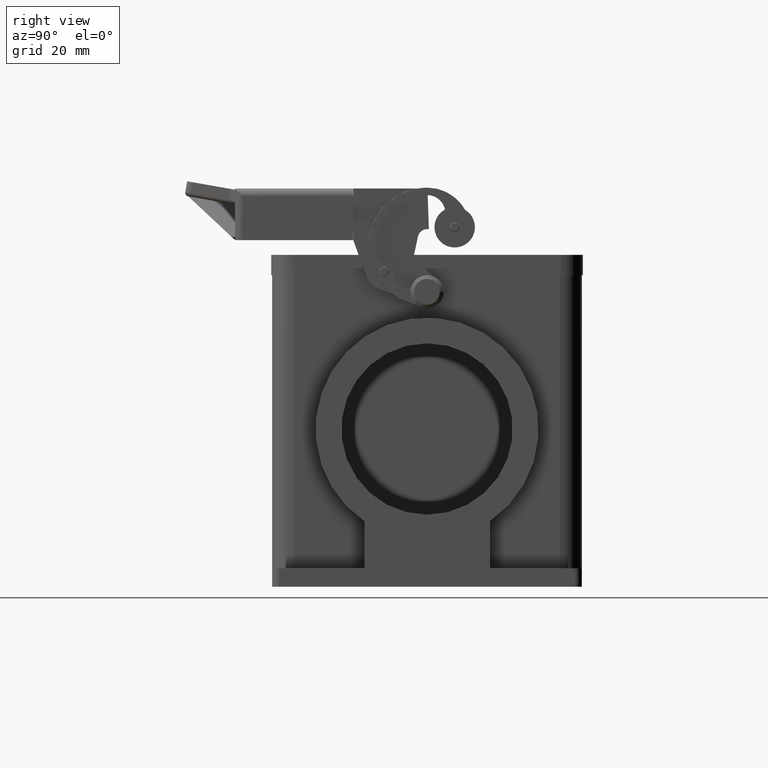
[diagram: clean part render]
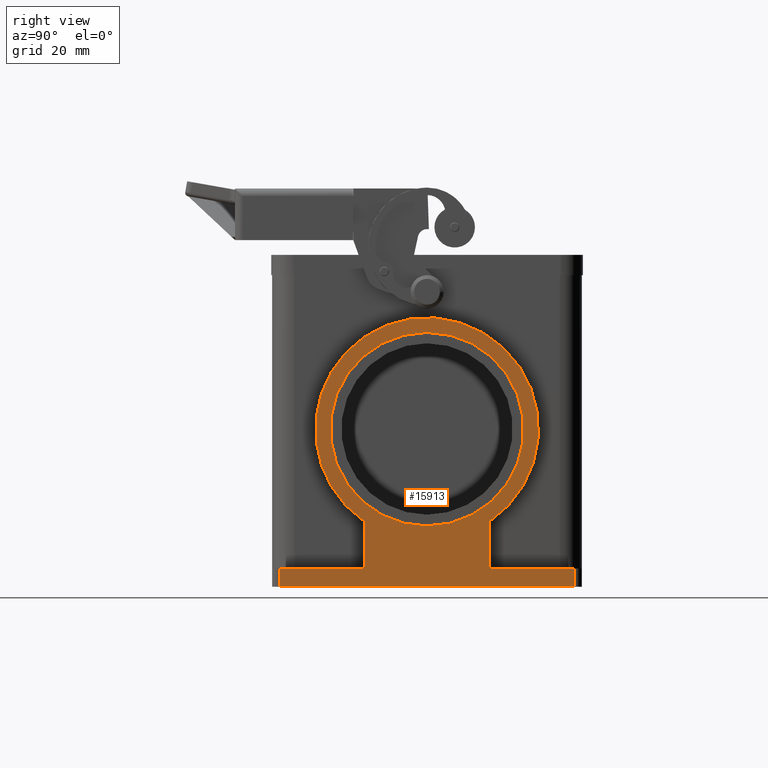
[diagram: same view with one face highlighted and labeled with its STEP entity id]
A machine part, right view. The second image highlights one B-rep face of the part: STEP entity #15913.
In plain terms, the highlighted planar face has unit normal (1, 0, 0).
Its self-contained STEP definition (entity closure, byte-faithful):
#227=CARTESIAN_POINT('',(62.499999999999986,-40.000000000000007,-55.0));
#228=VERTEX_POINT('',#227);
#236=CARTESIAN_POINT('',(62.499999999999986,-40.000000000000007,-50.0));
#237=VERTEX_POINT('',#236);
#238=CARTESIAN_POINT('',(62.499999999999986,-40.000000000000007,-55.0));
#239=DIRECTION('',(0.0,0.0,1.0));
#240=VECTOR('',#239,5.0);
#241=LINE('',#238,#240);
#242=EDGE_CURVE('',#228,#237,#241,.T.);
#1449=CARTESIAN_POINT('',(62.500000000000000,-17.000000000000014,12.761240976418426));
#1450=VERTEX_POINT('',#1449);
#1459=CARTESIAN_POINT('',(62.500000000000000,17.0,-37.281240976418403));
#1460=VERTEX_POINT('',#1459);
#1461=CARTESIAN_POINT('',(62.500000000000000,1.110223E-015,-12.259999999999991));
#1462=DIRECTION('',(-1.0,0.0,0.0));
#1463=DIRECTION('',(0.0,-0.561983471074380,0.827148462030361));
#1464=AXIS2_PLACEMENT_3D('',#1461,#1462,#1463);
#1465=CIRCLE('',#1464,30.250000000000007);
#1466=EDGE_CURVE('',#1450,#1460,#1465,.T.);
#1699=CARTESIAN_POINT('',(62.500000000000000,0.0,13.980000000000008));
#1700=VERTEX_POINT('',#1699);
#1709=CARTESIAN_POINT('',(62.499999999999986,-3.213367E-015,-38.500000000000000));
#1710=VERTEX_POINT('',#1709);
#1711=CARTESIAN_POINT('',(62.499999999999986,0.0,-12.259999999999994));
#1712=DIRECTION('',(-1.0,0.0,1.553563E-013));
#1713=DIRECTION('',(1.553563E-013,0.0,1.0));
#1714=AXIS2_PLACEMENT_3D('',#1711,#1712,#1713);
#1715=CIRCLE('',#1714,26.240000000000006);
#1716=EDGE_CURVE('',#1710,#1700,#1715,.T.);
#14662=CARTESIAN_POINT('',(62.499999999999986,0.0,-12.259999999999994));
#14663=DIRECTION('',(-1.0,0.0,1.553563E-013));
#14664=DIRECTION('',(1.553563E-013,0.0,1.0));
#14665=AXIS2_PLACEMENT_3D('',#14662,#14663,#14664);
#14666=CIRCLE('',#14665,26.240000000000006);
#14667=EDGE_CURVE('',#1700,#1710,#14666,.T.);
#15106=CARTESIAN_POINT('',(62.499999999999986,40.000000000000014,-55.0));
#15107=VERTEX_POINT('',#15106);
#15115=CARTESIAN_POINT('',(62.499999999999986,40.000000000000014,-55.0));
#15116=DIRECTION('',(0.0,-1.0,0.0));
#15117=VECTOR('',#15116,80.000000000000028);
#15118=LINE('',#15115,#15117);
#15119=EDGE_CURVE('',#15107,#228,#15118,.T.);
#15574=CARTESIAN_POINT('',(62.500000000000000,17.0,-50.0));
#15575=VERTEX_POINT('',#15574);
#15589=CARTESIAN_POINT('',(62.500000000000000,17.0,-37.281240976418403));
#15590=DIRECTION('',(0.0,0.0,-1.0));
#15591=VECTOR('',#15590,12.718759023581597);
#15592=LINE('',#15589,#15591);
#15593=EDGE_CURVE('',#1460,#15575,#15592,.T.);
#15827=CARTESIAN_POINT('',(62.500000000000000,-17.0,-37.281240976418403));
#15828=VERTEX_POINT('',#15827);
#15835=CARTESIAN_POINT('',(62.500000000000000,1.110223E-015,-12.259999999999991));
#15836=DIRECTION('',(-1.0,0.0,0.0));
#15837=DIRECTION('',(0.0,-0.561983471074380,0.827148462030361));
#15838=AXIS2_PLACEMENT_3D('',#15835,#15836,#15837);
#15839=CIRCLE('',#15838,30.250000000000007);
#15840=EDGE_CURVE('',#15828,#1450,#15839,.T.);
#15850=CARTESIAN_POINT('',(62.500000000000000,-17.0,-50.0));
#15851=VERTEX_POINT('',#15850);
#15860=CARTESIAN_POINT('',(62.500000000000000,-17.0,-50.0));
#15861=DIRECTION('',(0.0,0.0,1.0));
#15862=VECTOR('',#15861,12.718759023581597);
#15863=LINE('',#15860,#15862);
#15864=EDGE_CURVE('',#15851,#15828,#15863,.T.);
#15876=CARTESIAN_POINT('',(62.499999999999986,42.000000000000021,-55.0));
#15877=DIRECTION('',(1.0,0.0,0.0));
#15878=DIRECTION('',(0.0,0.0,-1.0));
#15879=AXIS2_PLACEMENT_3D('',#15876,#15877,#15878);
#15880=PLANE('',#15879);
#15881=CARTESIAN_POINT('',(62.500000000000000,-17.0,-50.0));
#15882=DIRECTION('',(0.0,-1.0,0.0));
#15883=VECTOR('',#15882,23.000000000000007);
#15884=LINE('',#15881,#15883);
#15885=EDGE_CURVE('',#15851,#237,#15884,.T.);
#15886=ORIENTED_EDGE('',*,*,#15885,.T.);
#15887=ORIENTED_EDGE('',*,*,#242,.F.);
#15888=ORIENTED_EDGE('',*,*,#15119,.F.);
#15889=CARTESIAN_POINT('',(62.499999999999986,40.000000000000014,-50.0));
#15890=VERTEX_POINT('',#15889);
#15891=CARTESIAN_POINT('',(62.499999999999986,40.000000000000014,-50.0));
#15892=DIRECTION('',(0.0,0.0,-1.0));
#15893=VECTOR('',#15892,5.0);
#15894=LINE('',#15891,#15893);
#15895=EDGE_CURVE('',#15890,#15107,#15894,.T.);
#15896=ORIENTED_EDGE('',*,*,#15895,.F.);
#15897=CARTESIAN_POINT('',(62.499999999999986,40.000000000000014,-50.0));
#15898=DIRECTION('',(0.0,-1.0,0.0));
#15899=VECTOR('',#15898,23.000000000000014);
#15900=LINE('',#15897,#15899);
#15901=EDGE_CURVE('',#15890,#15575,#15900,.T.);
#15902=ORIENTED_EDGE('',*,*,#15901,.T.);
#15903=ORIENTED_EDGE('',*,*,#15593,.F.);
#15904=ORIENTED_EDGE('',*,*,#1466,.F.);
#15905=ORIENTED_EDGE('',*,*,#15840,.F.);
#15906=ORIENTED_EDGE('',*,*,#15864,.F.);
#15907=EDGE_LOOP('',(#15886,#15887,#15888,#15896,#15902,#15903,#15904,#15905,#15906));
#15908=FACE_OUTER_BOUND('',#15907,.T.);
#15909=ORIENTED_EDGE('',*,*,#14667,.T.);
#15910=ORIENTED_EDGE('',*,*,#1716,.T.);
#15911=EDGE_LOOP('',(#15909,#15910));
#15912=FACE_BOUND('',#15911,.T.);
#15913=ADVANCED_FACE('',(#15908,#15912),#15880,.T.);